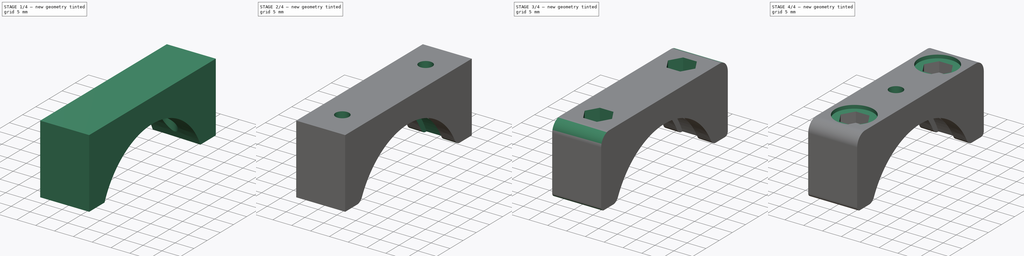
[diagram: build sequence overview — one tinted view per stage of 4, left to right]
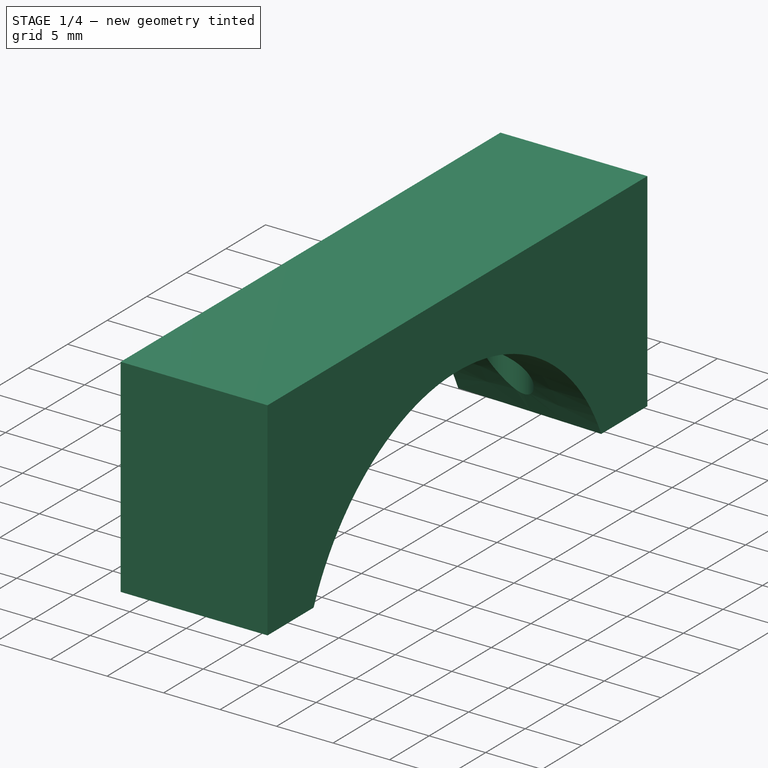
[diagram: stage 1 of 4 — iso view after this stage's code; geometry added in this stage tinted green]
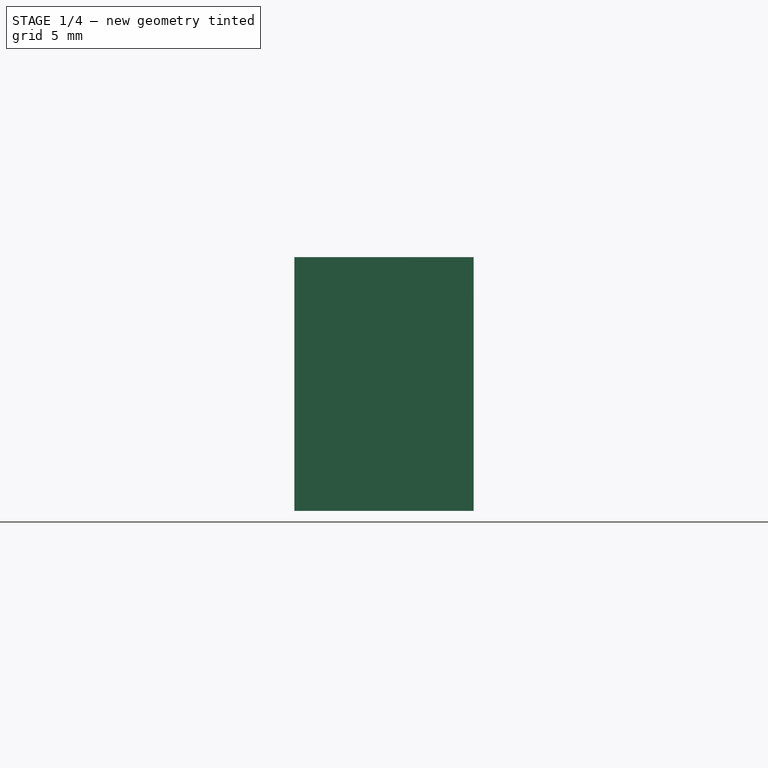
[diagram: stage 1 of 4 — front view after this stage's code; geometry added in this stage tinted green]
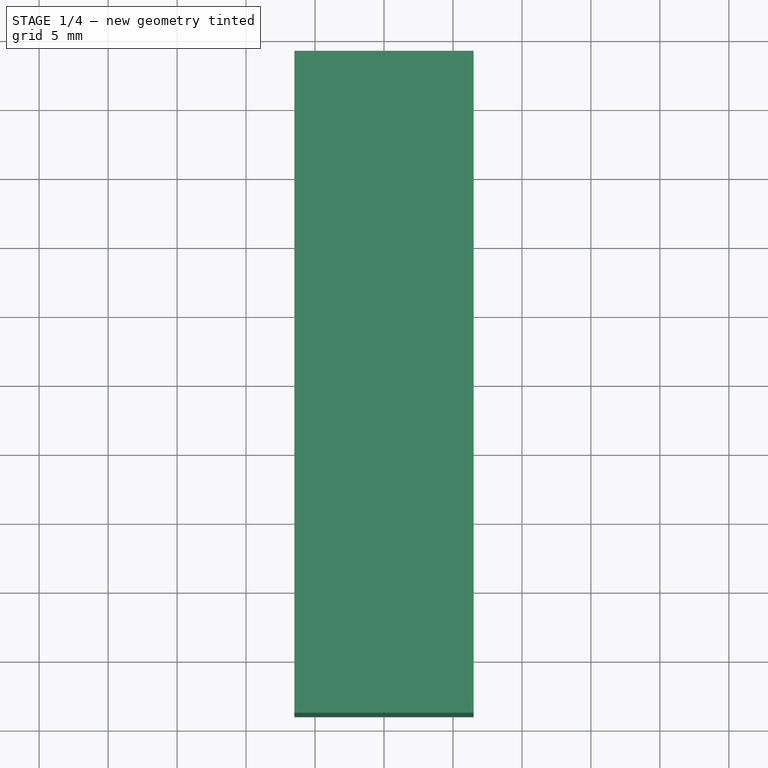
[diagram: stage 1 of 4 — top view after this stage's code; geometry added in this stage tinted green]
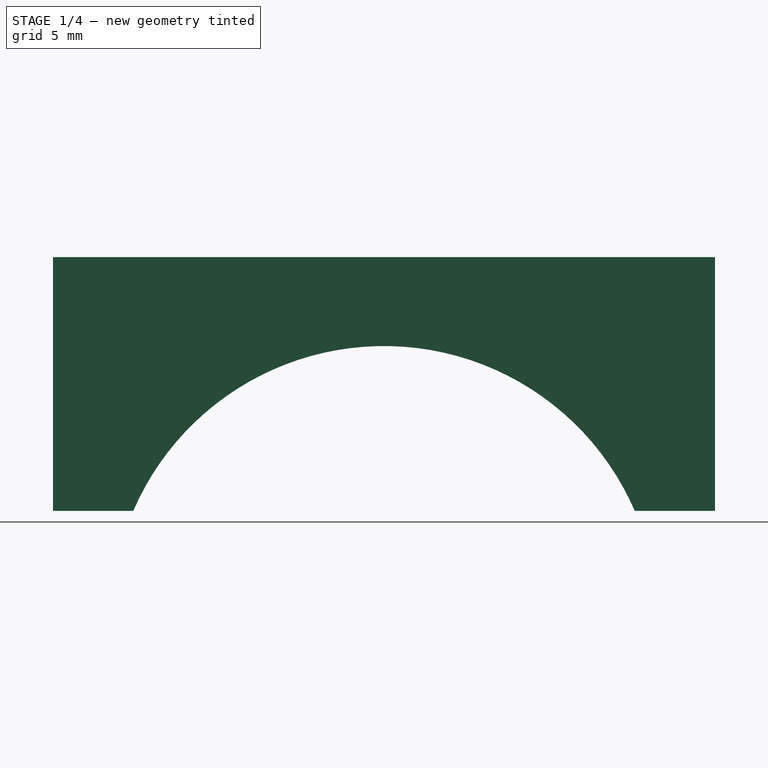
[diagram: stage 1 of 4 — right view after this stage's code; geometry added in this stage tinted green]
FCSTD DOCUMENT  (FreeCAD 0.21R33771 (Git))
Label: capa-lateral
License: All rights reserved
LicenseURL: https://en.wikipedia.org/wiki/All_rights_reserved
objects: Sketcher::SketchObject×13, PartDesign::Pocket×8, PartDesign::Fillet×3, PartDesign::Revolution×1, PartDesign::Pad×1, PartDesign::Groove×1, PartDesign::Body×1
note: 42 computed .brp shape members not serialized (recipe doc carries the construction recipe); baked Part::Feature solids carry a one-line shape summary decoded from their .brp

FEATURE [Sketcher::SketchObject] Sketch
  FullyConstrained = false
  MapMode = 5
  Support = -> [XY_Plane]
  sketch-geometry (8):
    g0: LineSegment StartX=-6.8739e+11 StartY=19.75 StartZ=0 EndX=-6.8739e+11 EndY=-19.75 EndZ=0
    g1: LineSegment StartX=-6.5 StartY=25.25 StartZ=0 EndX=6.5 EndY=25.25 EndZ=0
    g2: LineSegment StartX=6.5 StartY=25.25 StartZ=0 EndX=6.5 EndY=19.8 EndZ=0
    g3: LineSegment StartX=6.5 StartY=19.8 StartZ=0 EndX=-6.5 EndY=20.25 EndZ=0
    g4: LineSegment StartX=-6.5 StartY=20.25 StartZ=0 EndX=-6.5 EndY=25.25 EndZ=0
    g5: LineSegment StartX=-6.5 StartY=20.25 StartZ=0 EndX=-6.5 EndY=-20.25 EndZ=0
    g6: LineSegment StartX=6.5 StartY=19.8 StartZ=0 EndX=6.5 EndY=-19.8 EndZ=0
    g7: LineSegment StartX=-6.5 StartY=20.25 StartZ=0 EndX=6.5 EndY=20.25 EndZ=0
  constraints (20):
    c: Symmetric(g0,g0,g-1)
    c: DistanceY(g0,g0) = 39.5
    c: Coincident(g1,g2)
    c: Coincident(g2,g3)
    c: Coincident(g3,g4)
    c: Coincident(g4,g1)
    c: Vertical(g2)
    c: Vertical(g4)
    c: DistanceX(g1,g1) = 13
    c: Symmetric(g5,g5,g-1)
    c: Symmetric(g6,g6,g-1)
    c: Coincident(g5,g3)
    c: Coincident(g6,g2)
    c: Symmetric(g1,g1,g-2)
    c: Horizontal(g7)
    c: PointOnObject(g7,g2)
    c: Coincident(g3,g7)
    c: DistanceY(g4,g4) = 5
    c: DistanceY(g5,g5) = 40.5
    c: DistanceY(g6,g6) = 39.6
FEATURE [PartDesign::Revolution] Revolution
  Angle = 180
  Axis = (1,0,0)
  Base = (0,0,0)
  Profile = -> Sketch
  ReferenceAxis = -> X_Axis
FEATURE [Sketcher::SketchObject] Sketch001
  FullyConstrained = true
  MapMode = 5
  Placement = pos=(0,0,0) rot=(1,0,0;3.14159rad)
  Support = -> [Revolution]
  sketch-geometry (3):
    g0: Circle CenterX=0 CenterY=15.8 CenterZ=0 NormalX=0 NormalY=0 NormalZ=1 AngleXU=0 Radius=1.8
    g1: Circle CenterX=0 CenterY=-15.8 CenterZ=0 NormalX=0 NormalY=0 NormalZ=1 AngleXU=0 Radius=1.8
    g2: LineSegment StartX=0 StartY=15.8 StartZ=0 EndX=0 EndY=-15.8 EndZ=0
  constraints (7):
    c: PointOnObject(g0,g-2)
    c: Coincident(g2,g0)
    c: Coincident(g1,g2)
    c: Symmetric(g1,g0,g-1)
    c: Equal(g0,g1)
    c: Diameter(g0) = 3.6
    c: DistanceY(g1,g0) = 31.6
FEATURE [PartDesign::Pocket] Pocket
  BaseFeature = -> Revolution
  Direction = (0,0,1)
  Length = 0
  Length2 = 5
  Profile = -> Sketch001
  ReferenceAxis = -> Sketch001 [N_Axis]
  Type = 3
  UpToFace = -> Revolution [Face1]
FEATURE [Sketcher::SketchObject] Sketch002
  ExternalGeometry = -> [Pocket]
  FullyConstrained = true
  MapMode = 5
  Placement = pos=(6.5,0,0) rot=(0.57735,0.57735,0.57735;2.0944rad)
  Support = -> [Pocket]
  sketch-geometry (8):
    g0: LineSegment StartX=-24 StartY=25.25 StartZ=0 EndX=24 EndY=25.25 EndZ=0
    g1: LineSegment StartX=24 StartY=25.25 StartZ=0 EndX=24 EndY=7.84618 EndZ=0
    g2: LineSegment StartX=24 StartY=7.84618 StartZ=0 EndX=-24 EndY=7.84618 EndZ=0
    g3: LineSegment StartX=-24 StartY=7.84618 StartZ=0 EndX=-24 EndY=25.25 EndZ=0
    g4: LineSegment StartX=-25.25 StartY=7.84618 StartZ=0 EndX=25.25 EndY=7.84618 EndZ=0
    g5: LineSegment StartX=25.25 StartY=7.84618 StartZ=0 EndX=25.25 EndY=2.7e-15 EndZ=0
    g6: LineSegment StartX=25.25 StartY=2.7e-15 StartZ=0 EndX=-25.25 EndY=2.7e-15 EndZ=0
    g7: LineSegment StartX=-25.25 StartY=2.7e-15 StartZ=0 EndX=-25.25 EndY=7.84618 EndZ=0
  constraints (21):
    c: Coincident(g0,g1)
    c: Coincident(g1,g2)
    c: Coincident(g2,g3)
    c: Coincident(g3,g0)
    c: Horizontal(g0)
    c: Vertical(g1)
    c: Vertical(g3)
    c: PointOnObject(g2,g-3)
    c: Symmetric(g1,g2,g-2)
    c: DistanceX(g2,g2) = 48
    c: Tangent(g0,g-3)
    c: Coincident(g4,g5)
    c: Coincident(g5,g6)
    c: Coincident(g6,g7)
    c: Coincident(g7,g4)
    c: Horizontal(g4)
    c: Vertical(g5)
    c: Vertical(g7)
    c: Coincident(g6,g-3)
    c: Coincident(g5,g-3)
    c: PointOnObject(g1,g4)
FEATURE [PartDesign::Pocket] Pocket001
  BaseFeature = -> Pocket
  Direction = (-1,0,0)
  Length = 5
  Length2 = 5
  Profile = -> Sketch002
  ReferenceAxis = -> Sketch002 [N_Axis]
  Type = 1
FEATURE [Sketcher::SketchObject] Sketch003
  ExternalGeometry = -> [Pocket001]
  FullyConstrained = true
  MapMode = 5
  Placement = pos=(6.5,0,0) rot=(0.57735,0.57735,0.57735;2.0944rad)
  Support = -> [Pocket001]
  sketch-geometry (5):
    g0: ArcOfCircle CenterX=1.1e-15 CenterY=0 CenterZ=0 NormalX=0 NormalY=0 NormalZ=1 AngleXU=0 Radius=25.25 StartAngle=0.315971 EndAngle=2.82562
    g1: LineSegment StartX=-24 StartY=7.84618 StartZ=0 EndX=-24 EndY=26.25 EndZ=0
    g2: LineSegment StartX=-24 StartY=26.25 StartZ=0 EndX=24 EndY=26.25 EndZ=0
    g3: LineSegment StartX=24 StartY=26.25 StartZ=0 EndX=24 EndY=7.84618 EndZ=0
    g4: GeomPoint X=0 Y=25.25 Z=0
  constraints (13):
    c: Coincident(g0,g-3)
    c: Coincident(g0,g-3)
    c: Coincident(g0,g1)
    c: Coincident(g1,g2)
    c: Horizontal(g2)
    c: Coincident(g2,g3)
    c: Coincident(g3,g0)
    c: Vertical(g3)
    c: Vertical(g1)
    c: PointOnObject(g4,g-2)
    c: PointOnObject(g4,g0)
    c: DistanceY(g4,g2) = 1
    c: Coincident(g0,g-3)
FEATURE [PartDesign::Pad] Pad
  BaseFeature = -> Pocket001
  Direction = (1,0,0)
  Length = 10
  Length2 = 10
  Profile = -> Sketch003
  ReferenceAxis = -> Sketch003 [N_Axis]
  Type = 3
  UpToFace = -> Pocket001 [Face5]
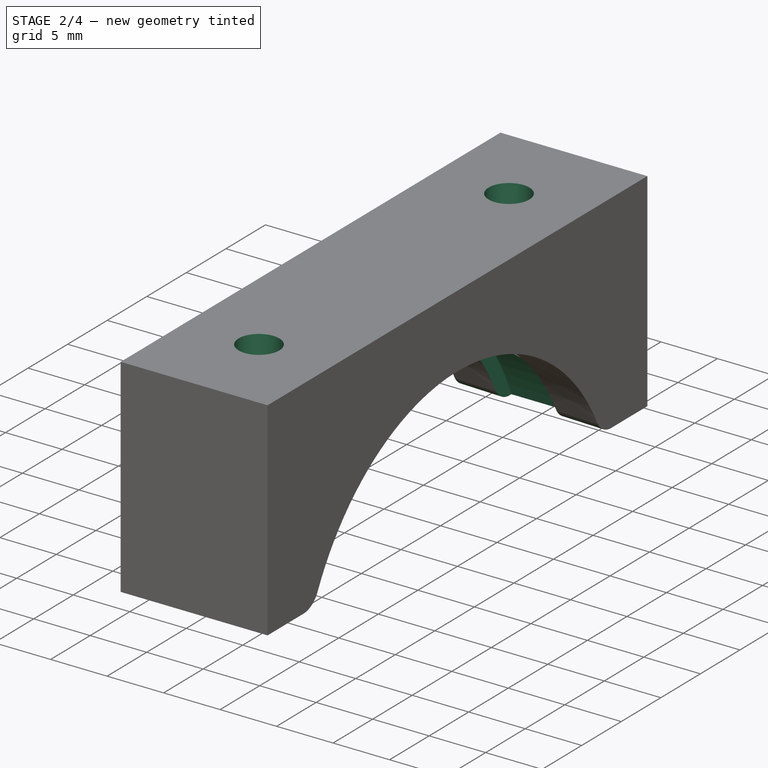
[diagram: stage 2 of 4 — iso view after this stage's code; geometry added in this stage tinted green]
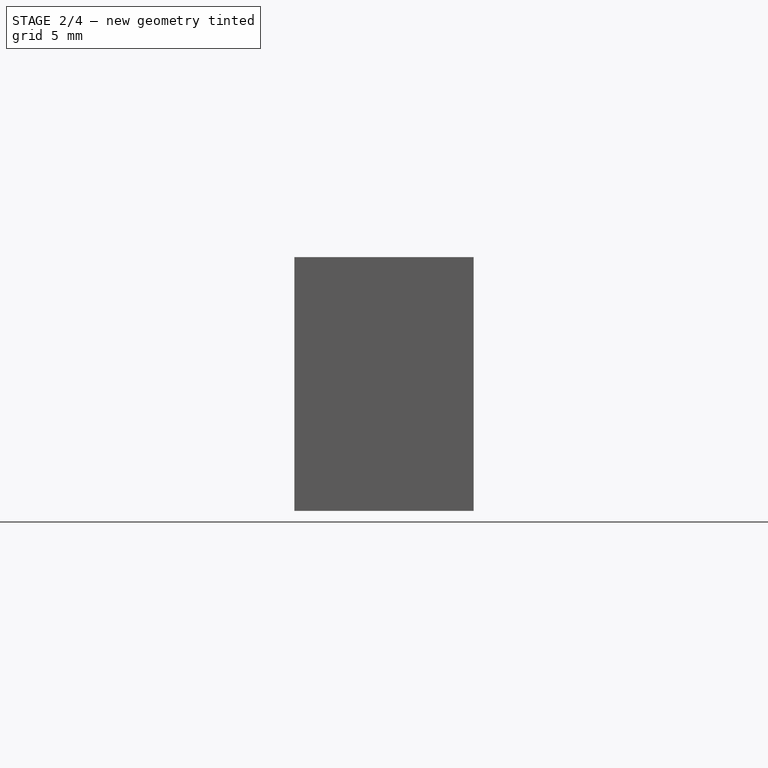
[diagram: stage 2 of 4 — front view after this stage's code; geometry added in this stage tinted green]
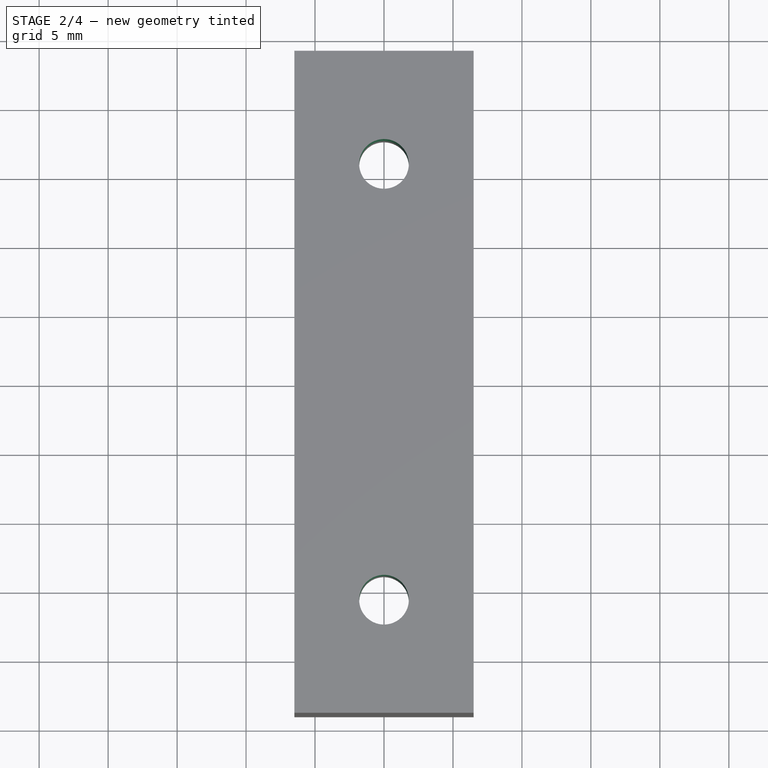
[diagram: stage 2 of 4 — top view after this stage's code; geometry added in this stage tinted green]
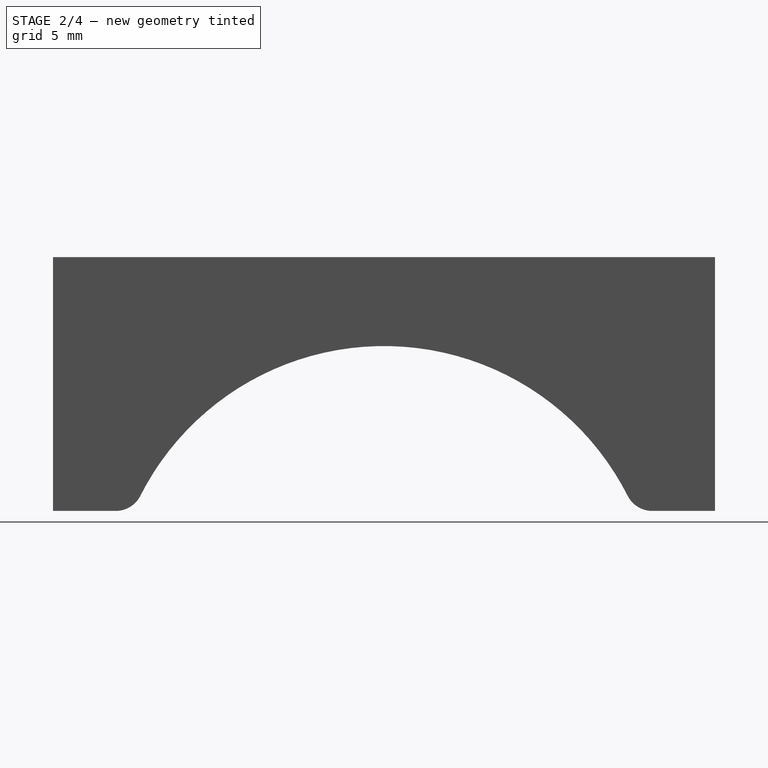
[diagram: stage 2 of 4 — right view after this stage's code; geometry added in this stage tinted green]
FEATURE [Sketcher::SketchObject] Sketch004
  FullyConstrained = true
  MapMode = 5
  Placement = pos=(0,0,26.25) rot=(0,0,1;0rad)
  Support = -> [Pad]
  sketch-geometry (2):
    g0: Circle CenterX=0 CenterY=15.8 CenterZ=0 NormalX=0 NormalY=0 NormalZ=1 AngleXU=0 Radius=1.8
    g1: Circle CenterX=0 CenterY=-15.8 CenterZ=0 NormalX=0 NormalY=0 NormalZ=1 AngleXU=0 Radius=1.8
  constraints (5):
    c: Equal(g1,g0)
    c: Symmetric(g1,g0,g-1)
    c: PointOnObject(g1,g-2)
    c: DistanceY(g1,g0) = 31.6
    c: Diameter(g0) = 3.6
FEATURE [PartDesign::Pocket] Pocket002
  BaseFeature = -> Pad
  Direction = (0,0,-1)
  Length = 5
  Length2 = 5
  Profile = -> Sketch004
  ReferenceAxis = -> Sketch004 [N_Axis]
  Type = 1
FEATURE [Sketcher::SketchObject] Sketch005
  ExternalGeometry = -> [Pocket002]
  FullyConstrained = true
  MapMode = 5
  Placement = pos=(0,0,7.84618) rot=(1,0,0;3.14159rad)
  Support = -> [Pocket002]
  sketch-geometry (4):
    g0: LineSegment StartX=-2.75 StartY=18.5273 StartZ=0 EndX=2.75 EndY=18.3203 EndZ=0
    g1: LineSegment StartX=-2.75 StartY=18.5273 StartZ=0 EndX=-2.75 EndY=20.0273 EndZ=0
    g2: LineSegment StartX=-2.75 StartY=20.0273 StartZ=0 EndX=2.75 EndY=20.0273 EndZ=0
    g3: LineSegment StartX=2.75 StartY=20.0273 StartZ=0 EndX=2.75 EndY=18.3203 EndZ=0
  constraints (11):
    c: Coincident(g0,g1)
    c: Coincident(g1,g2)
    c: Coincident(g2,g3)
    c: Coincident(g3,g0)
    c: Vertical(g1)
    c: Vertical(g3)
    c: Symmetric(g1,g2,g-2)
    c: PointOnObject(g0,g-3)
    c: PointOnObject(g0,g-3)
    c: DistanceY(g1,g1) = 1.5
    c: DistanceX(g2,g2) = 5.5
FEATURE [PartDesign::Groove] Groove
  Angle = 360
  Axis = (1,0,0)
  Base = (0,0,0)
  BaseFeature = -> Pocket002
  Profile = -> Sketch005
  ReferenceAxis = -> X_Axis
FEATURE [PartDesign::Fillet] Fillet
  Base = -> Groove [Edge28,Edge18,Edge8,Edge4]
  BaseFeature = -> Groove
  Radius = 2
  SupportTransform = false
  UseAllEdges = false
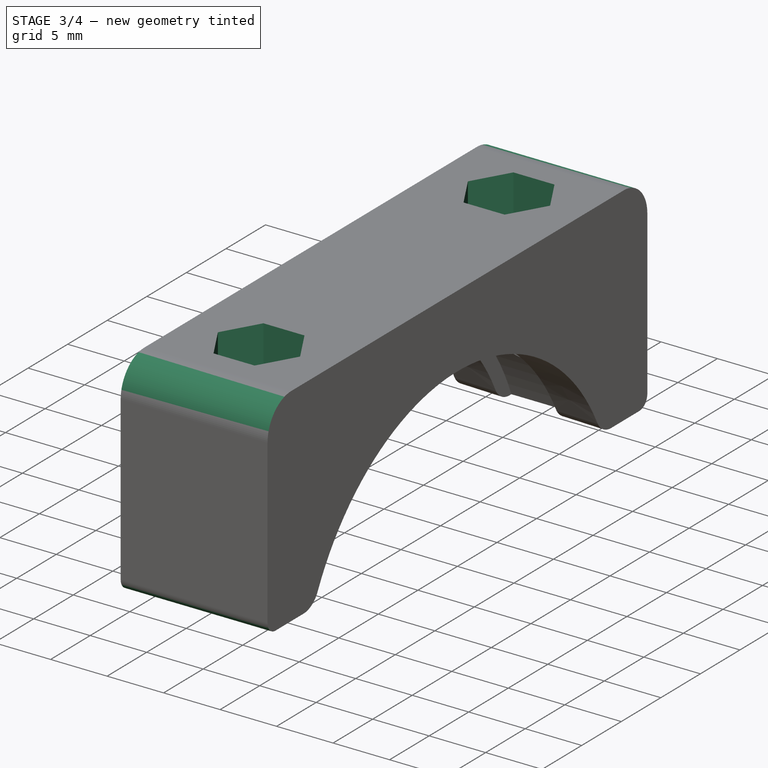
[diagram: stage 3 of 4 — iso view after this stage's code; geometry added in this stage tinted green]
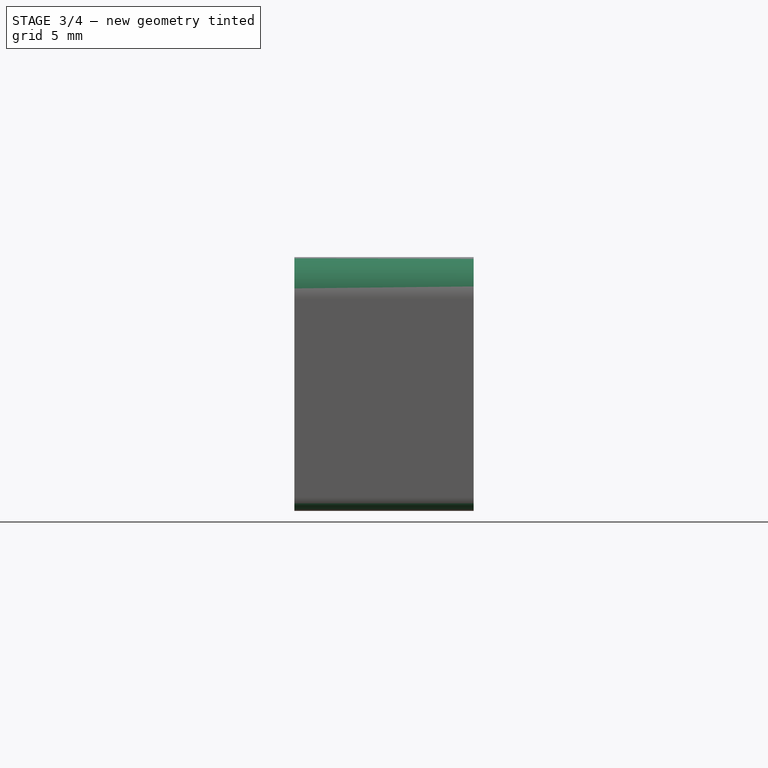
[diagram: stage 3 of 4 — front view after this stage's code; geometry added in this stage tinted green]
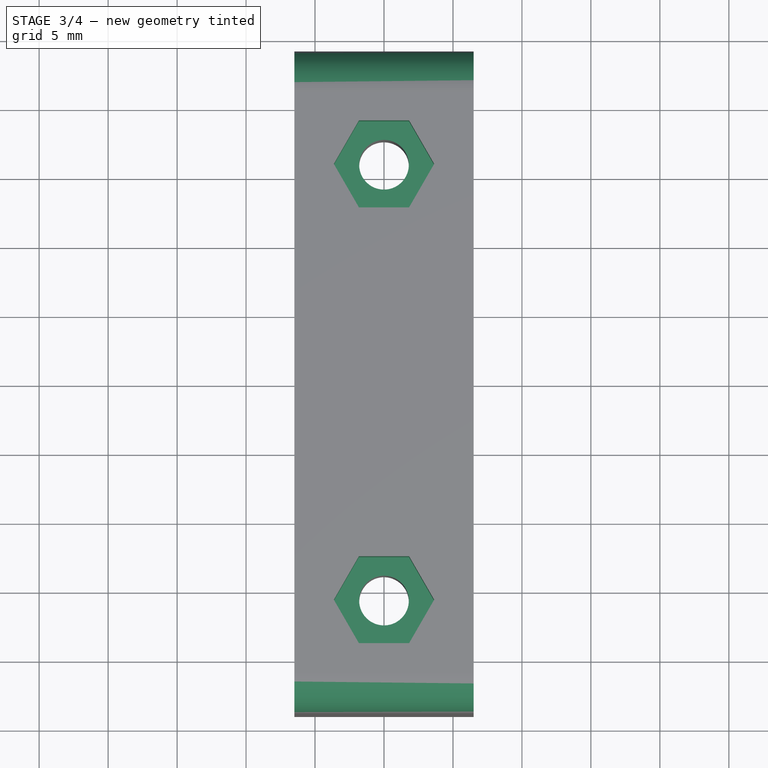
[diagram: stage 3 of 4 — top view after this stage's code; geometry added in this stage tinted green]
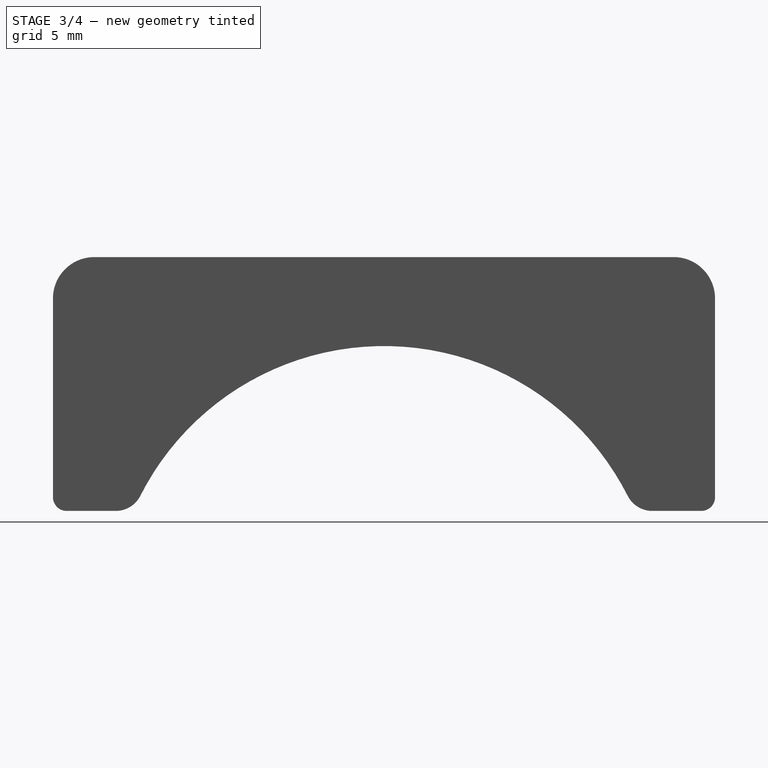
[diagram: stage 3 of 4 — right view after this stage's code; geometry added in this stage tinted green]
FEATURE [PartDesign::Fillet] Fillet001
  Base = -> Fillet [Edge3,Edge41]
  BaseFeature = -> Fillet
  Radius = 1
  SupportTransform = false
  UseAllEdges = false
FEATURE [PartDesign::Fillet] Fillet002
  Base = -> Fillet001 [Edge54,Edge60]
  BaseFeature = -> Fillet001
  Radius = 3
  SupportTransform = false
  UseAllEdges = false
FEATURE [Sketcher::SketchObject] Sketch006
  ExternalGeometry = -> [Fillet002]
  FullyConstrained = true
  MapMode = 5
  Placement = pos=(0,0,26.25) rot=(0,0,1;0rad)
  Support = -> [Fillet002]
  sketch-geometry (14):
    g0: LineSegment StartX=-1.81865 StartY=12.65 StartZ=0 EndX=1.81865 EndY=12.65 EndZ=0
    g1: LineSegment StartX=1.81865 StartY=12.65 StartZ=0 EndX=3.63731 EndY=15.8 EndZ=0
    g2: LineSegment StartX=3.63731 StartY=15.8 StartZ=0 EndX=1.81865 EndY=18.95 EndZ=0
    g3: LineSegment StartX=1.81865 StartY=18.95 StartZ=0 EndX=-1.81865 EndY=18.95 EndZ=0
    g4: LineSegment StartX=-1.81865 StartY=18.95 StartZ=0 EndX=-3.63731 EndY=15.8 EndZ=0
    g5: LineSegment StartX=-3.63731 StartY=15.8 StartZ=0 EndX=-1.81865 EndY=12.65 EndZ=0
    g6: Circle CenterX=0 CenterY=15.8 CenterZ=0 NormalX=0 NormalY=0 NormalZ=1 AngleXU=0 Radius=3.63731
    g7: LineSegment StartX=-1.81865 StartY=-18.95 StartZ=0 EndX=1.81865 EndY=-18.95 EndZ=0
    g8: LineSegment StartX=1.81865 StartY=-18.95 StartZ=0 EndX=3.63731 EndY=-15.8 EndZ=0
    g9: LineSegment StartX=3.63731 StartY=-15.8 StartZ=0 EndX=1.81865 EndY=-12.65 EndZ=0
    g10: LineSegment StartX=1.81865 StartY=-12.65 StartZ=0 EndX=-1.81865 EndY=-12.65 EndZ=0
    g11: LineSegment StartX=-1.81865 StartY=-12.65 StartZ=0 EndX=-3.63731 EndY=-15.8 EndZ=0
    g12: LineSegment StartX=-3.63731 StartY=-15.8 StartZ=0 EndX=-1.81865 EndY=-18.95 EndZ=0
    g13: Circle CenterX=0 CenterY=-15.8 CenterZ=0 NormalX=0 NormalY=0 NormalZ=1 AngleXU=0 Radius=3.63731
  constraints (32):
    c: Coincident(g0,g1)
    c: Coincident(g1,g2)
    c: Coincident(g2,g3)
    c: Coincident(g3,g4)
    c: Coincident(g4,g5)
    c: Coincident(g5,g0)
    c: Equal(g0, g1-g5) x5
    c: PointOnObject(g0,g6)
    c: PointOnObject(g1,g6)
    c: PointOnObject(g2,g6)
    c: PointOnObject(g3,g6)
    c: PointOnObject(g4,g6)
    c: PointOnObject(g5,g6)
    c: Coincident(g6,g-3)
    c: Coincident(g7,g8)
    c: Coincident(g8,g9)
    c: Coincident(g9,g10)
    c: Coincident(g10,g11)
    c: Coincident(g11,g12)
    c: Coincident(g12,g7)
    c: Equal(g7, g8-g12) x5
    c: PointOnObject(g7,g13)
    c: PointOnObject(g8,g13)
    c: PointOnObject(g9,g13)
    c: PointOnObject(g10,g13)
    c: PointOnObject(g11,g13)
    c: PointOnObject(g12,g13)
    c: Coincident(g13,g-4)
    c: Horizontal(g10)
    c: Horizontal(g0)
    c: Equal(g6,g13)
    c: DistanceY(g7,g10) = 6.3
FEATURE [PartDesign::Pocket] Pocket003
  BaseFeature = -> Fillet002
  Direction = (0,0,-1)
  Length = 3.6
  Length2 = 5
  Profile = -> Sketch006
  ReferenceAxis = -> Sketch006 [N_Axis]
  Type = 0
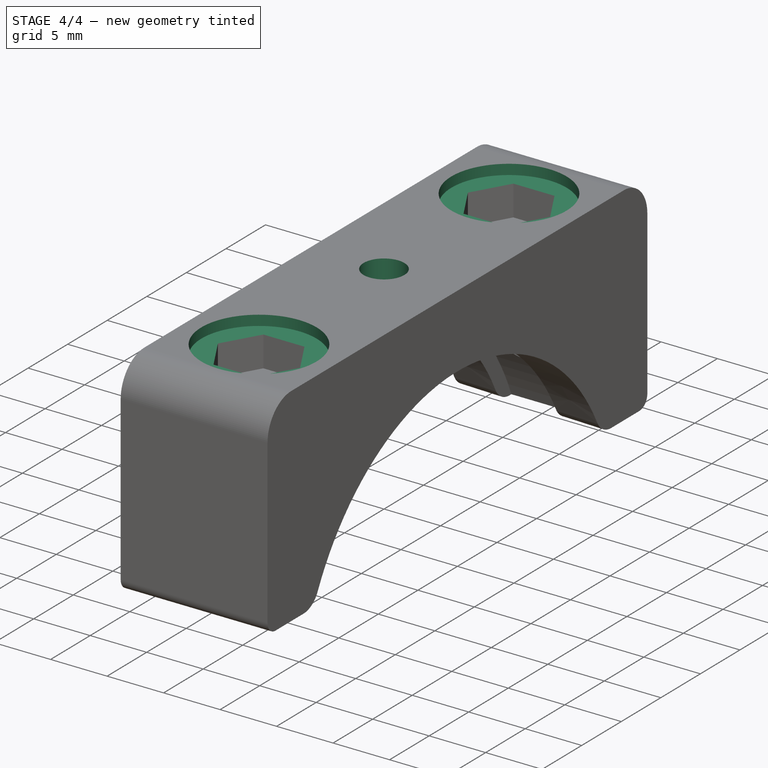
[diagram: stage 4 of 4 — iso view after this stage's code; geometry added in this stage tinted green]
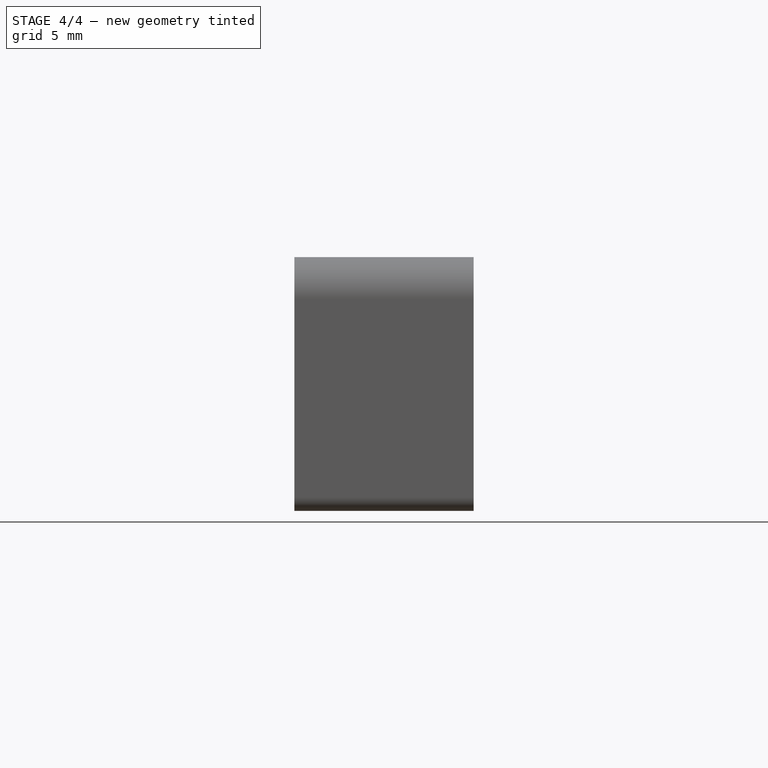
[diagram: stage 4 of 4 — front view after this stage's code; geometry added in this stage tinted green]
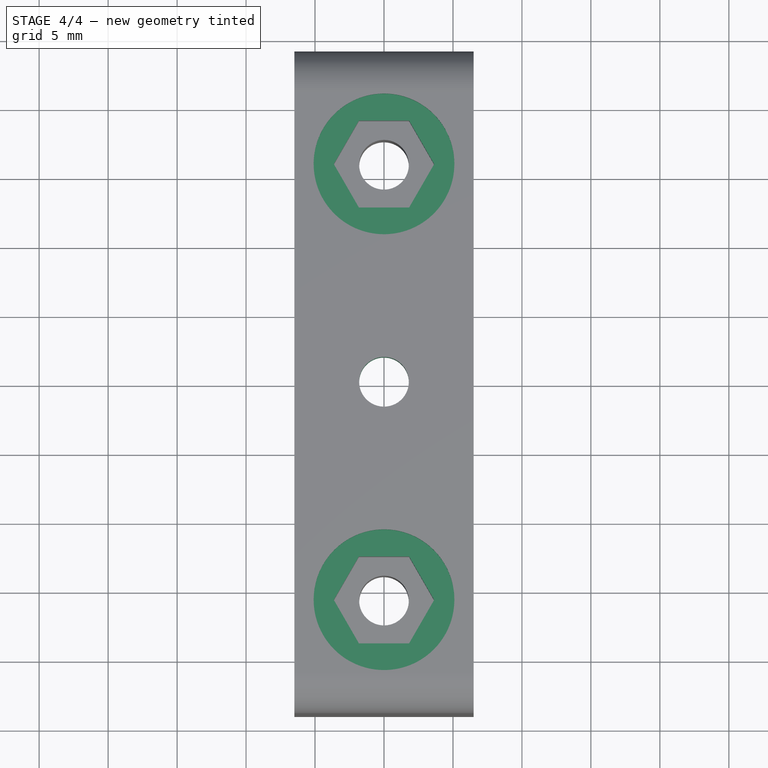
[diagram: stage 4 of 4 — top view after this stage's code; geometry added in this stage tinted green]
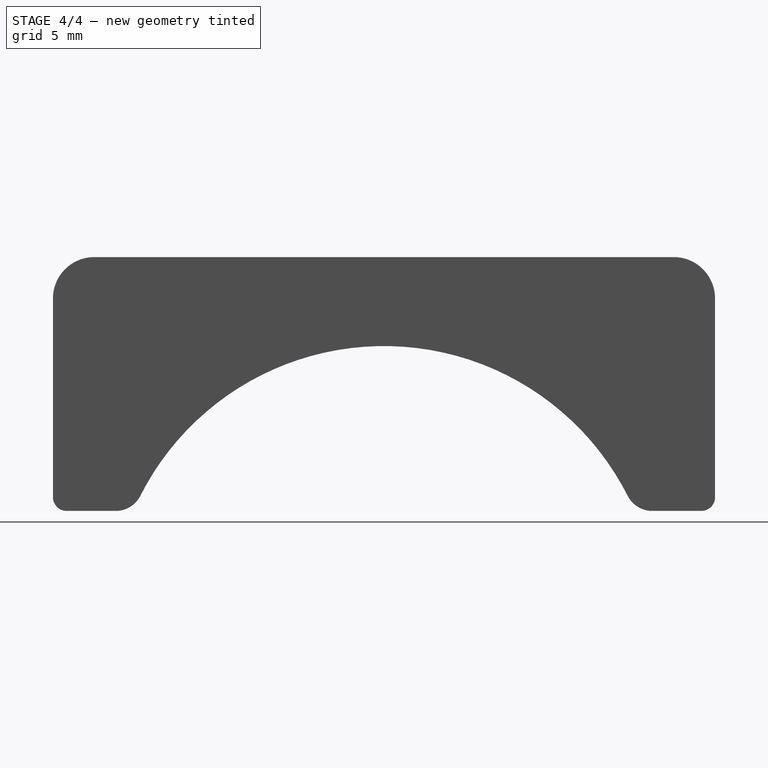
[diagram: stage 4 of 4 — right view after this stage's code; geometry added in this stage tinted green]
FEATURE [Sketcher::SketchObject] Sketch007
  ExternalGeometry = -> [Pocket003]
  FullyConstrained = true
  MapMode = 5
  Placement = pos=(0,0,26.25) rot=(0,0,1;0rad)
  Support = -> [Pocket003]
  sketch-geometry (2):
    g0: Circle CenterX=0 CenterY=15.8 CenterZ=0 NormalX=0 NormalY=0 NormalZ=1 AngleXU=0 Radius=5.1
    g1: Circle CenterX=0 CenterY=-15.8 CenterZ=0 NormalX=0 NormalY=0 NormalZ=1 AngleXU=0 Radius=5.1
  constraints (4):
    c: Coincident(g0,g-4)
    c: Coincident(g1,g-3)
    c: Equal(g1,g0)
    c: Diameter(g0) = 10.2
FEATURE [PartDesign::Pocket] Pocket004
  BaseFeature = -> Pocket003
  Direction = (0,0,-1)
  Length = 0.9
  Length2 = 5
  Profile = -> Sketch007
  ReferenceAxis = -> Sketch007 [N_Axis]
  Type = 0
FEATURE [Sketcher::SketchObject] Sketch008
  FullyConstrained = true
  MapMode = 5
  Placement = pos=(0,0,26.25) rot=(0,0,1;0rad)
  Support = -> [Pocket004]
  sketch-geometry (1):
    g0: Circle CenterX=0 CenterY=0 CenterZ=0 NormalX=0 NormalY=0 NormalZ=1 AngleXU=0 Radius=1.8
  constraints (2):
    c: Coincident(g0,g-1)
    c: Diameter(g0) = 3.6
FEATURE [PartDesign::Pocket] Pocket005
  BaseFeature = -> Pocket004
  Direction = (0,0,-1)
  Length = 5
  Length2 = 5
  Profile = -> Sketch008
  ReferenceAxis = -> Sketch008 [N_Axis]
  Type = 1
FEATURE [Sketcher::SketchObject] Sketch009
  FullyConstrained = true
  MapMode = 5
  Placement = pos=(0,0,7.84618) rot=(1,0,0;3.14159rad)
  Support = -> [Pocket005]
  sketch-geometry (2):
    g0: Circle CenterX=0 CenterY=0 CenterZ=0 NormalX=0 NormalY=0 NormalZ=1 AngleXU=0 Radius=2.8
    g1: Circle CenterX=0 CenterY=0 CenterZ=0 NormalX=0 NormalY=0 NormalZ=1 AngleXU=0 Radius=1.8
  constraints (4):
    c: Coincident(g0,g-1)
    c: Coincident(g1,g0)
    c: Diameter(g1) = 3.6
    c: Diameter(g0) = 5.6
FEATURE [PartDesign::Pocket] Pocket006
  BaseFeature = -> Pocket005
  Direction = (0,0,1)
  Length = 14.5
  Length2 = 5
  Profile = -> Sketch009
  ReferenceAxis = -> Sketch009 [N_Axis]
  Type = 0
FEATURE [Sketcher::SketchObject] Sketch010
  ExternalGeometry = -> [Pocket006]
  FullyConstrained = true
  MapMode = 5
  Placement = pos=(-6.5,0,0) rot=(0.57735,-0.57735,-0.57735;2.0944rad)
  Support = -> [Pocket006]
  constraints (1):
    c: DistanceX(g-3,g-4) = 48
FEATURE [PartDesign::Pocket] Pocket007
  BaseFeature = -> Pocket006
  Direction = (0,0,1)
  Length = 1
  Length2 = 5
  Profile = -> Pocket006 [Face27]
  Type = 0
FEATURE [Sketcher::SketchObject] Sketch011
  ExternalGeometry = -> [Pocket007]
  FullyConstrained = true
  MapMode = 5
  Placement = pos=(0,0,26.25) rot=(0,0,1;0rad)
  Support = -> [Pocket007]
  constraints (1):
    c: DistanceY(g-4,g-3) = 31.6
FEATURE [Sketcher::SketchObject] Sketch012
  ExternalGeometry = -> [Pocket007]
  FullyConstrained = true
  MapMode = 5
  Placement = pos=(0,0,26.25) rot=(0,0,1;0rad)
  Support = -> [Pocket007]
  constraints (4):
    c: DistanceX(g-3,g-4) = 13
    c: DistanceY(g-5,g-3) = 48
    c: DistanceY(g-8,g-7) = 31.6
    c: DistanceY(g-10,g-9) = 6.3
FEATURE [PartDesign::Body] Body
  Group = -> [Sketch,Revolution,Sketch001,Pocket,Sketch002,Pocket001,Sketch003,Pad,Sketch004,Pocket002,Sketch005,Groove,Fillet,Fillet001,Fillet002,Sketch006,Pocket003,Sketch007,Pocket004,Sketch008,Pocket005,Sketch009,Pocket006,Sketch010,Pocket007,Sketch011,Sketch012]
  Origin = -> Origin
  Tip = -> Pocket007
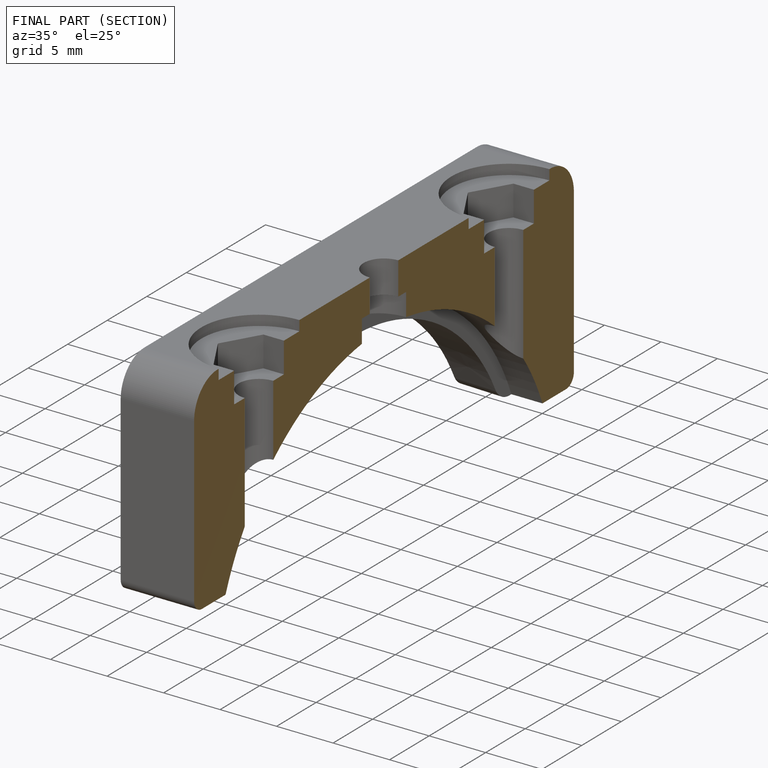
[diagram: finished part — half-section view (interior)]
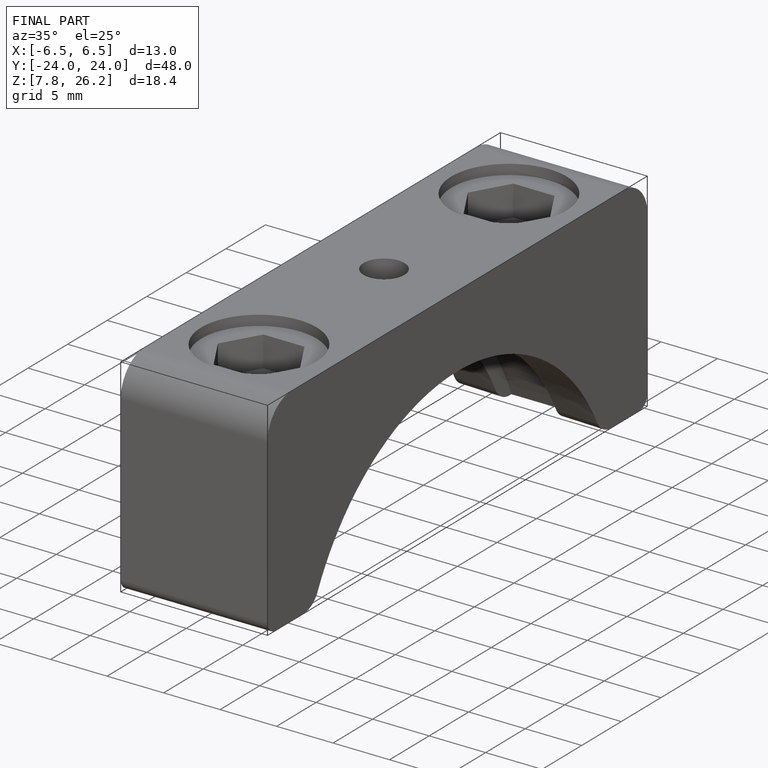
[diagram: finished part — iso view with bounding-box wireframe]
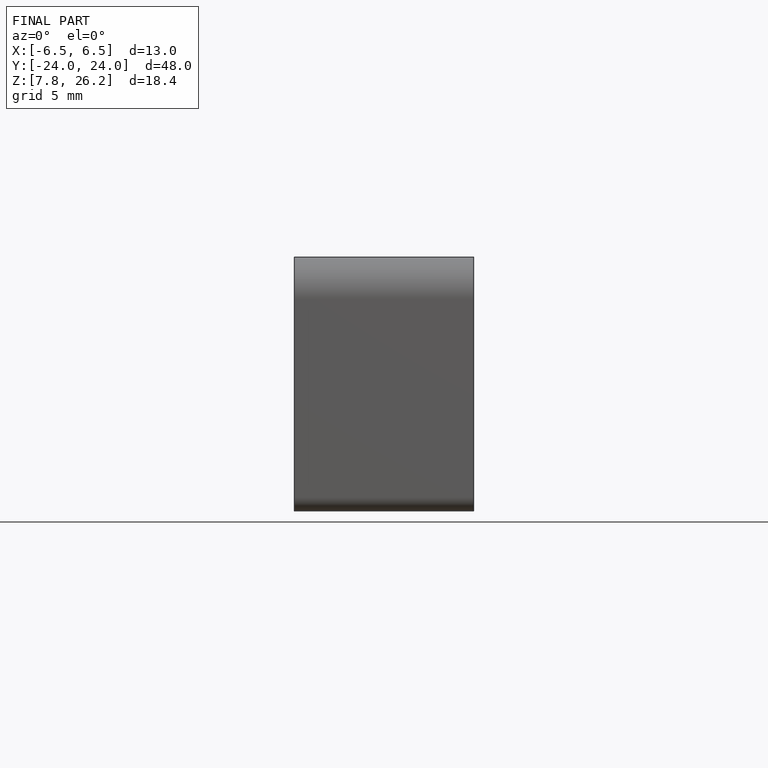
[diagram: finished part — front view with bounding-box wireframe]
